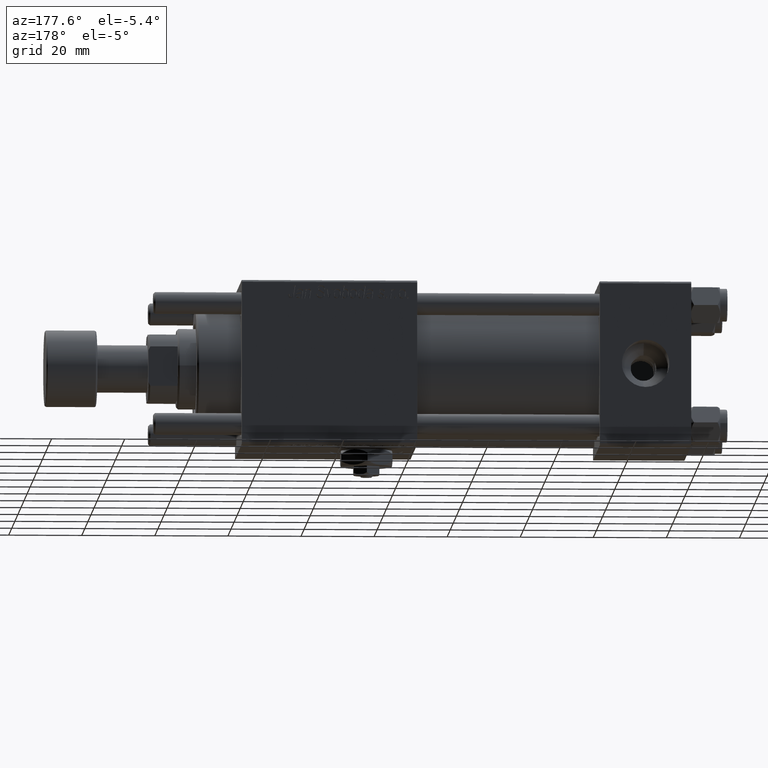
[diagram: clean part render]
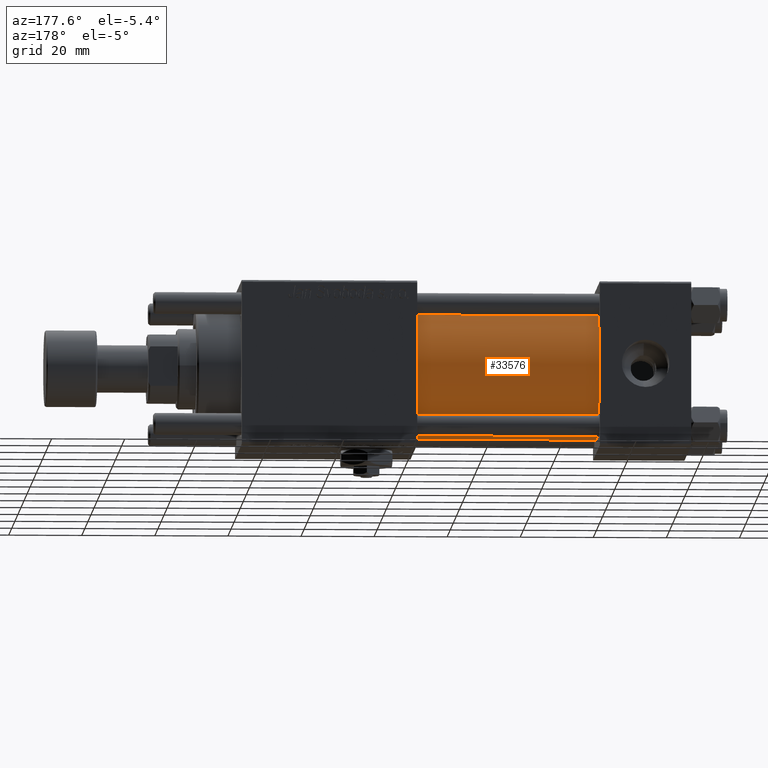
[diagram: same view with one face highlighted and labeled with its STEP entity id]
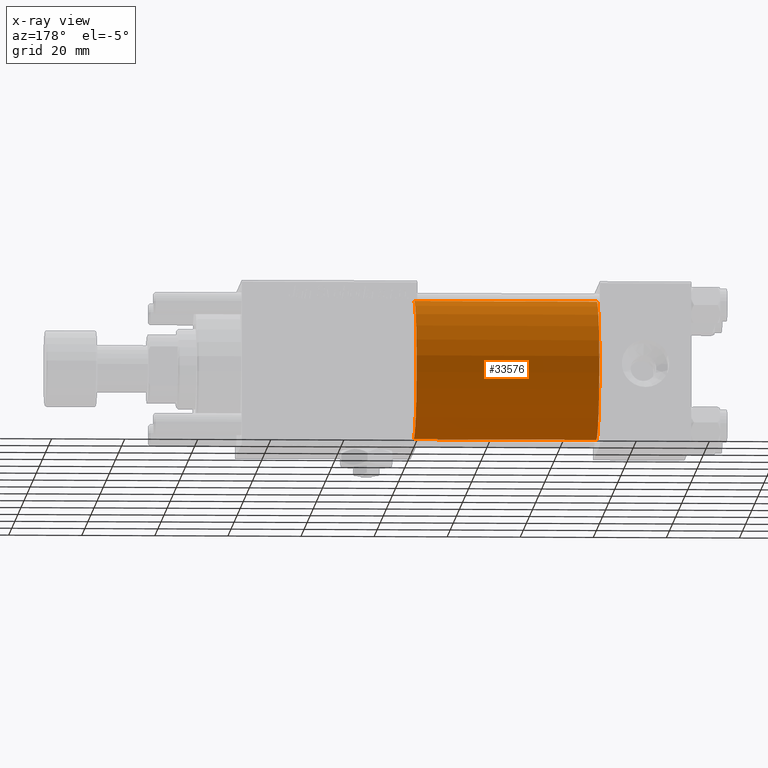
[diagram: x-ray of the same camera — body ghosted, the highlighted face saturated]
A machine part, auxiliary view. The second image highlights one B-rep face of the part: STEP entity #33576.
The next image is the same camera in x-ray: the body ghosted, the highlighted face saturated — about 0% of this face is hidden behind the body in this view.
In plain terms, the highlighted cylindrical surface (partial cylindrical patch) has radius 19 mm, axis along (-1, -0, -0).
Its self-contained STEP definition (entity closure, byte-faithful):
#687 = VECTOR ( 'NONE', #29353, 1000.000000000000000 ) ;
#730 = EDGE_CURVE ( 'NONE', #34375, #57812, #35830, .T. ) ;
#1460 = AXIS2_PLACEMENT_3D ( 'NONE', #39047, #11819, #29504 ) ;
#2389 = CARTESIAN_POINT ( 'NONE',  ( 75.00000000000001421, -2.602085213965210642E-15, 0.000000000000000000 ) ) ;
#3258 = CYLINDRICAL_SURFACE ( 'NONE', #8664, 19.00000000000000000 ) ;
#7775 = FACE_OUTER_BOUND ( 'NONE', #34878, .T. ) ;
#8664 = AXIS2_PLACEMENT_3D ( 'NONE', #2389, #48446, #21526 ) ;
#9057 = AXIS2_PLACEMENT_3D ( 'NONE', #34005, #29231, #19951 ) ;
#9844 = ORIENTED_EDGE ( 'NONE', *, *, #45760, .T. ) ;
#11819 = DIRECTION ( 'NONE',  ( 1.000000000000000000, -0.000000000000000000, 0.000000000000000000 ) ) ;
#12059 = CARTESIAN_POINT ( 'NONE',  ( 75.00000000000001421, -2.602085213965210642E-15, 19.00000000000000000 ) ) ;
#12282 = ORIENTED_EDGE ( 'NONE', *, *, #730, .F. ) ;
#12446 = ORIENTED_EDGE ( 'NONE', *, *, #56324, .T. ) ;
#13174 = CARTESIAN_POINT ( 'NONE',  ( 25.00000000000000000, -2.602085213965210642E-15, 19.00000000000000000 ) ) ;
#15500 = VECTOR ( 'NONE', #54145, 1000.000000000000000 ) ;
#19951 = DIRECTION ( 'NONE',  ( 0.000000000000000000, 0.000000000000000000, -1.000000000000000000 ) ) ;
#20064 = LINE ( 'NONE', #52062, #687 ) ;
#21526 = DIRECTION ( 'NONE',  ( 0.000000000000000000, 0.000000000000000000, 1.000000000000000000 ) ) ;
#22300 = VERTEX_POINT ( 'NONE', #13174 ) ;
#23409 = CARTESIAN_POINT ( 'NONE',  ( 25.00000000000000000, -2.752562955852396712E-16, -19.00000000000000000 ) ) ;
#25253 = ORIENTED_EDGE ( 'NONE', *, *, #37423, .F. ) ;
#28226 = CIRCLE ( 'NONE', #1460, 19.00000000000000000 ) ;
#29231 = DIRECTION ( 'NONE',  ( 1.000000000000000000, 0.000000000000000000, 0.000000000000000000 ) ) ;
#29353 = DIRECTION ( 'NONE',  ( -1.000000000000000000, -0.000000000000000000, -0.000000000000000000 ) ) ;
#29504 = DIRECTION ( 'NONE',  ( 0.000000000000000000, 0.000000000000000000, 1.000000000000000000 ) ) ;
#32971 = CARTESIAN_POINT ( 'NONE',  ( 75.00000000000001421, -2.752562955852396712E-16, -19.00000000000000000 ) ) ;
#33576 = ADVANCED_FACE ( 'NONE', ( #7775 ), #3258, .T. ) ;
#34005 = CARTESIAN_POINT ( 'NONE',  ( 75.00000000000001421, -2.602085213965210642E-15, 0.000000000000000000 ) ) ;
#34375 = VERTEX_POINT ( 'NONE', #32971 ) ;
#34878 = EDGE_LOOP ( 'NONE', ( #12282, #12446, #9844, #25253 ) ) ;
#35830 = CIRCLE ( 'NONE', #9057, 19.00000000000000000 ) ;
#37423 = EDGE_CURVE ( 'NONE', #57812, #22300, #44569, .T. ) ;
#39047 = CARTESIAN_POINT ( 'NONE',  ( 25.00000000000000000, -2.602085213965210642E-15, 0.000000000000000000 ) ) ;
#44569 = LINE ( 'NONE', #49061, #15500 ) ;
#45760 = EDGE_CURVE ( 'NONE', #46094, #22300, #28226, .T. ) ;
#46094 = VERTEX_POINT ( 'NONE', #23409 ) ;
#48446 = DIRECTION ( 'NONE',  ( -1.000000000000000000, -0.000000000000000000, -0.000000000000000000 ) ) ;
#49061 = CARTESIAN_POINT ( 'NONE',  ( 75.00000000000001421, -2.602085213965210642E-15, 19.00000000000000000 ) ) ;
#52062 = CARTESIAN_POINT ( 'NONE',  ( 75.00000000000001421, -2.752562955852396712E-16, -19.00000000000000000 ) ) ;
#54145 = DIRECTION ( 'NONE',  ( -1.000000000000000000, -0.000000000000000000, -0.000000000000000000 ) ) ;
#56324 = EDGE_CURVE ( 'NONE', #34375, #46094, #20064, .T. ) ;
#57812 = VERTEX_POINT ( 'NONE', #12059 ) ;